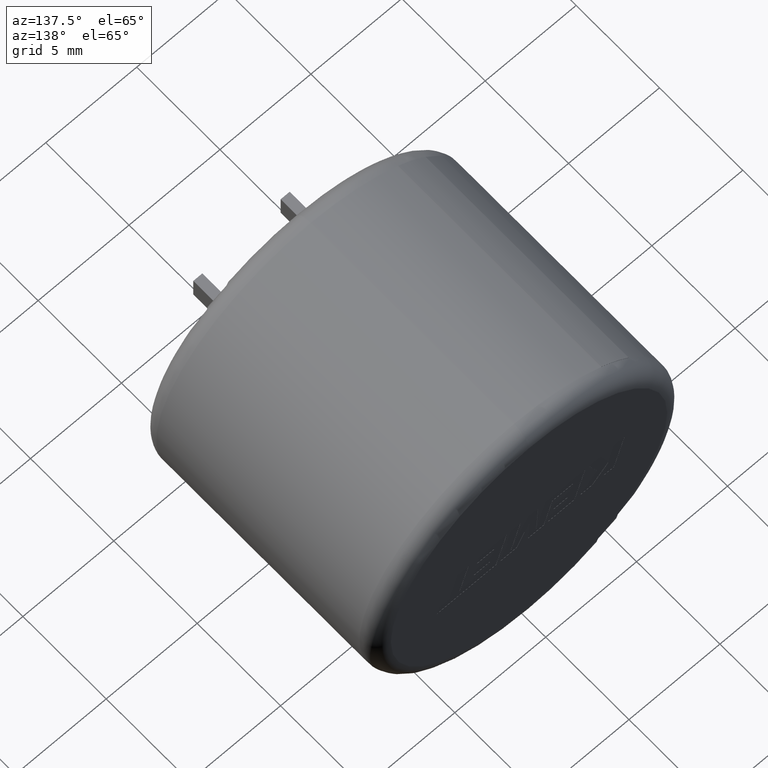
[diagram: clean part render]
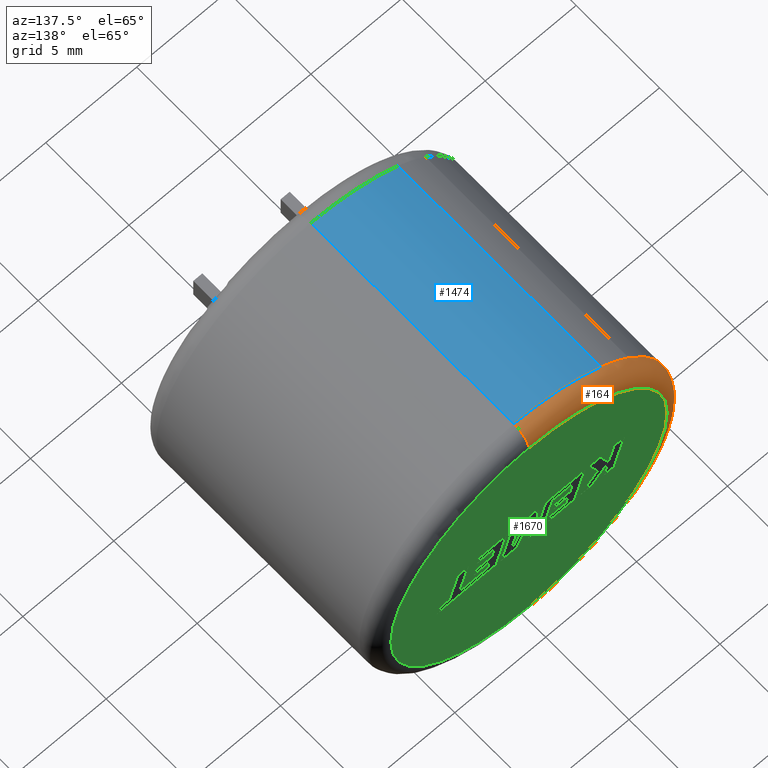
[diagram: same view with three faces highlighted in distinct colors, each labeled with its STEP entity id]
A machine part, auxiliary view with three faces highlighted in distinct colors.
Their STEP definitions:

[orange] entity #164 — the highlighted toroidal blend (fillet) surface has major radius 7.597 mm and minor (blend) radius 0.903 mm.
#4 = CARTESIAN_POINT ( 'NONE',  ( 0.0000000000000000000, 14.00000000000000000, 0.0000000000000000000 ) ) ;
#15 = CARTESIAN_POINT ( 'NONE',  ( 1.040949779275250100E-015, 13.09700000000000100, 8.500000000000000000 ) ) ;
#39 = DIRECTION ( 'NONE',  ( 0.0000000000000000000, 0.0000000000000000000, 1.000000000000000000 ) ) ;
#82 = EDGE_CURVE ( 'NONE', #1088, #2329, #1260, .T. ) ;
#98 = DIRECTION ( 'NONE',  ( -1.000000000000000000, 0.0000000000000000000, 0.0000000000000000000 ) ) ;
#164 = ADVANCED_FACE ( 'NONE', ( #1083 ), #819, .T. ) ;
#245 = VERTEX_POINT ( 'NONE', #284 ) ;
#256 = CARTESIAN_POINT ( 'NONE',  ( 0.0000000000000000000, 13.09700000000000100, 0.0000000000000000000 ) ) ;
#284 = CARTESIAN_POINT ( 'NONE',  ( 0.0000000000000000000, 13.09700000000000100, -8.500000000000000000 ) ) ;
#302 = VERTEX_POINT ( 'NONE', #702 ) ;
#450 = DIRECTION ( 'NONE',  ( -0.0000000000000000000, -1.000000000000000000, -0.0000000000000000000 ) ) ;
#455 = CARTESIAN_POINT ( 'NONE',  ( 0.0000000000000000000, 13.09700000000000100, 0.0000000000000000000 ) ) ;
#460 = AXIS2_PLACEMENT_3D ( 'NONE', #4, #1494, #1700 ) ;
#567 = CARTESIAN_POINT ( 'NONE',  ( 0.0000000000000000000, 13.09700000000000100, 7.597000000000000400 ) ) ;
#592 = AXIS2_PLACEMENT_3D ( 'NONE', #256, #1108, #2605 ) ;
#690 = EDGE_LOOP ( 'NONE', ( #1512, #1246, #697, #2365, #1658, #1499 ) ) ;
#697 = ORIENTED_EDGE ( 'NONE', *, *, #2578, .F. ) ;
#702 = CARTESIAN_POINT ( 'NONE',  ( -4.796984718136113400, 13.09700000000000100, 7.017046217174900800 ) ) ;
#747 = CIRCLE ( 'NONE', #592, 8.500000000000000000 ) ;
#801 = EDGE_CURVE ( 'NONE', #2371, #2329, #1804, .T. ) ;
#819 = TOROIDAL_SURFACE ( 'NONE', #912, 7.597000000000000400, 0.9030000000000000200 ) ;
#906 = CIRCLE ( 'NONE', #1922, 8.500000000000000000 ) ;
#912 = AXIS2_PLACEMENT_3D ( 'NONE', #455, #2194, #39 ) ;
#929 = EDGE_CURVE ( 'NONE', #245, #1088, #2611, .T. ) ;
#1028 = DIRECTION ( 'NONE',  ( 1.000000000000000000, -0.0000000000000000000, 1.224646799147353200E-016 ) ) ;
#1083 = FACE_OUTER_BOUND ( 'NONE', #690, .T. ) ;
#1088 = VERTEX_POINT ( 'NONE', #1543 ) ;
#1108 = DIRECTION ( 'NONE',  ( -0.0000000000000000000, -1.000000000000000000, -0.0000000000000000000 ) ) ;
#1156 = AXIS2_PLACEMENT_3D ( 'NONE', #567, #98, #1390 ) ;
#1219 = CARTESIAN_POINT ( 'NONE',  ( 9.303641733122443500E-016, 13.09700000000000100, -7.597000000000000400 ) ) ;
#1246 = ORIENTED_EDGE ( 'NONE', *, *, #1542, .F. ) ;
#1260 = CIRCLE ( 'NONE', #460, 7.597000000000000400 ) ;
#1390 = DIRECTION ( 'NONE',  ( 0.0000000000000000000, 0.0000000000000000000, 1.000000000000000000 ) ) ;
#1406 = VERTEX_POINT ( 'NONE', #2011 ) ;
#1494 = DIRECTION ( 'NONE',  ( 0.0000000000000000000, 1.000000000000000000, 0.0000000000000000000 ) ) ;
#1499 = ORIENTED_EDGE ( 'NONE', *, *, #82, .F. ) ;
#1512 = ORIENTED_EDGE ( 'NONE', *, *, #929, .F. ) ;
#1542 = EDGE_CURVE ( 'NONE', #1406, #245, #906, .T. ) ;
#1543 = CARTESIAN_POINT ( 'NONE',  ( 9.856569762937473500E-016, 14.00000000000000000, -7.597000000000000400 ) ) ;
#1658 = ORIENTED_EDGE ( 'NONE', *, *, #801, .T. ) ;
#1700 = DIRECTION ( 'NONE',  ( 0.0000000000000000000, 0.0000000000000000000, 1.000000000000000000 ) ) ;
#1804 = CIRCLE ( 'NONE', #1156, 0.9030000000000001400 ) ;
#1902 = CARTESIAN_POINT ( 'NONE',  ( 0.0000000000000000000, 13.09700000000000100, 0.0000000000000000000 ) ) ;
#1904 = CARTESIAN_POINT ( 'NONE',  ( 0.0000000000000000000, 14.00000000000000000, 7.597000000000000400 ) ) ;
#1922 = AXIS2_PLACEMENT_3D ( 'NONE', #1902, #2338, #2572 ) ;
#1959 = AXIS2_PLACEMENT_3D ( 'NONE', #2577, #450, #2587 ) ;
#1996 = AXIS2_PLACEMENT_3D ( 'NONE', #1219, #1028, #2520 ) ;
#2011 = CARTESIAN_POINT ( 'NONE',  ( -6.300684749941227700, 13.09700000000000100, 5.705380940994041700 ) ) ;
#2194 = DIRECTION ( 'NONE',  ( 0.0000000000000000000, 1.000000000000000000, 0.0000000000000000000 ) ) ;
#2329 = VERTEX_POINT ( 'NONE', #1904 ) ;
#2338 = DIRECTION ( 'NONE',  ( -0.0000000000000000000, -1.000000000000000000, -0.0000000000000000000 ) ) ;
#2346 = EDGE_CURVE ( 'NONE', #2371, #302, #2354, .T. ) ;
#2354 = CIRCLE ( 'NONE', #1959, 8.500000000000000000 ) ;
#2365 = ORIENTED_EDGE ( 'NONE', *, *, #2346, .F. ) ;
#2371 = VERTEX_POINT ( 'NONE', #15 ) ;
#2520 = DIRECTION ( 'NONE',  ( 1.224646799147352500E-016, 0.0000000000000000000, -1.000000000000000000 ) ) ;
#2572 = DIRECTION ( 'NONE',  ( 0.0000000000000000000, 0.0000000000000000000, 1.000000000000000000 ) ) ;
#2577 = CARTESIAN_POINT ( 'NONE',  ( 0.0000000000000000000, 13.09700000000000100, 0.0000000000000000000 ) ) ;
#2578 = EDGE_CURVE ( 'NONE', #302, #1406, #747, .T. ) ;
#2587 = DIRECTION ( 'NONE',  ( 0.0000000000000000000, 0.0000000000000000000, 1.000000000000000000 ) ) ;
#2605 = DIRECTION ( 'NONE',  ( 0.0000000000000000000, 0.0000000000000000000, 1.000000000000000000 ) ) ;
#2611 = CIRCLE ( 'NONE', #1996, 0.9030000000000001400 ) ;

[blue] entity #1474 — the highlighted cylindrical surface (partial cylindrical patch) has radius 8.5 mm, axis along (-0, -1, -0).
#15 = CARTESIAN_POINT ( 'NONE',  ( 1.040949779275250100E-015, 13.09700000000000100, 8.500000000000000000 ) ) ;
#26 = CARTESIAN_POINT ( 'NONE',  ( 1.040949779275250100E-015, 14.00000000000000000, 8.500000000000000000 ) ) ;
#34 = DIRECTION ( 'NONE',  ( -0.0000000000000000000, -1.000000000000000000, -0.0000000000000000000 ) ) ;
#289 = LINE ( 'NONE', #1080, #834 ) ;
#302 = VERTEX_POINT ( 'NONE', #702 ) ;
#405 = CIRCLE ( 'NONE', #2590, 8.500000000000000000 ) ;
#450 = DIRECTION ( 'NONE',  ( -0.0000000000000000000, -1.000000000000000000, -0.0000000000000000000 ) ) ;
#531 = DIRECTION ( 'NONE',  ( 0.0000000000000000000, 0.0000000000000000000, 1.000000000000000000 ) ) ;
#558 = DIRECTION ( 'NONE',  ( -0.0000000000000000000, -1.000000000000000000, -0.0000000000000000000 ) ) ;
#702 = CARTESIAN_POINT ( 'NONE',  ( -4.796984718136113400, 13.09700000000000100, 7.017046217174900800 ) ) ;
#794 = AXIS2_PLACEMENT_3D ( 'NONE', #2681, #558, #2487 ) ;
#834 = VECTOR ( 'NONE', #1720, 1000.000000000000000 ) ;
#1009 = FACE_OUTER_BOUND ( 'NONE', #2601, .T. ) ;
#1029 = VERTEX_POINT ( 'NONE', #2353 ) ;
#1071 = EDGE_CURVE ( 'NONE', #2371, #1029, #1079, .T. ) ;
#1079 = LINE ( 'NONE', #26, #2715 ) ;
#1080 = CARTESIAN_POINT ( 'NONE',  ( -4.796984718136113400, 0.9029999999999992500, 7.017046217174900800 ) ) ;
#1122 = ORIENTED_EDGE ( 'NONE', *, *, #1071, .F. ) ;
#1154 = EDGE_CURVE ( 'NONE', #1878, #1029, #405, .T. ) ;
#1474 = ADVANCED_FACE ( 'NONE', ( #1009 ), #2737, .T. ) ;
#1720 = DIRECTION ( 'NONE',  ( 0.0000000000000000000, 1.000000000000000000, 0.0000000000000000000 ) ) ;
#1769 = CARTESIAN_POINT ( 'NONE',  ( 0.0000000000000000000, 0.9029999999999992500, 0.0000000000000000000 ) ) ;
#1878 = VERTEX_POINT ( 'NONE', #2249 ) ;
#1959 = AXIS2_PLACEMENT_3D ( 'NONE', #2577, #450, #2587 ) ;
#2249 = CARTESIAN_POINT ( 'NONE',  ( -4.796984718136112500, 0.9029999999999992500, 7.017046217174901700 ) ) ;
#2346 = EDGE_CURVE ( 'NONE', #2371, #302, #2354, .T. ) ;
#2353 = CARTESIAN_POINT ( 'NONE',  ( 1.040949779275250100E-015, 0.9029999999999992500, 8.500000000000000000 ) ) ;
#2354 = CIRCLE ( 'NONE', #1959, 8.500000000000000000 ) ;
#2356 = ORIENTED_EDGE ( 'NONE', *, *, #1154, .T. ) ;
#2371 = VERTEX_POINT ( 'NONE', #15 ) ;
#2416 = EDGE_CURVE ( 'NONE', #1878, #302, #289, .T. ) ;
#2457 = ORIENTED_EDGE ( 'NONE', *, *, #2416, .F. ) ;
#2487 = DIRECTION ( 'NONE',  ( 0.0000000000000000000, 0.0000000000000000000, -1.000000000000000000 ) ) ;
#2577 = CARTESIAN_POINT ( 'NONE',  ( 0.0000000000000000000, 13.09700000000000100, 0.0000000000000000000 ) ) ;
#2587 = DIRECTION ( 'NONE',  ( 0.0000000000000000000, 0.0000000000000000000, 1.000000000000000000 ) ) ;
#2590 = AXIS2_PLACEMENT_3D ( 'NONE', #1769, #2664, #531 ) ;
#2601 = EDGE_LOOP ( 'NONE', ( #1122, #2689, #2457, #2356 ) ) ;
#2664 = DIRECTION ( 'NONE',  ( 0.0000000000000000000, 1.000000000000000000, 0.0000000000000000000 ) ) ;
#2681 = CARTESIAN_POINT ( 'NONE',  ( 0.0000000000000000000, 14.00000000000000000, 0.0000000000000000000 ) ) ;
#2689 = ORIENTED_EDGE ( 'NONE', *, *, #2346, .T. ) ;
#2715 = VECTOR ( 'NONE', #34, 1000.000000000000000 ) ;
#2737 = CYLINDRICAL_SURFACE ( 'NONE', #794, 8.500000000000000000 ) ;

[green] entity #1670 — the highlighted planar face has unit normal (0, 1, 0).
#2 = VECTOR ( 'NONE', #902, 1000.000000000000000 ) ;
#3 = DIRECTION ( 'NONE',  ( 0.2762437428917315400, 0.0000000000000000000, -0.9610876102172824000 ) ) ;
#4 = CARTESIAN_POINT ( 'NONE',  ( 0.0000000000000000000, 14.00000000000000000, 0.0000000000000000000 ) ) ;
#8 = LINE ( 'NONE', #131, #79 ) ;
#9 = EDGE_CURVE ( 'NONE', #2024, #1627, #754, .T. ) ;
#11 = VERTEX_POINT ( 'NONE', #557 ) ;
#20 = EDGE_CURVE ( 'NONE', #1627, #895, #8, .T. ) ;
#30 = VERTEX_POINT ( 'NONE', #2157 ) ;
#33 = LINE ( 'NONE', #1851, #2480 ) ;
#36 = CARTESIAN_POINT ( 'NONE',  ( -4.364136469712908800, 14.00000000000000000, -0.04168639734652045800 ) ) ;
#42 = VERTEX_POINT ( 'NONE', #1089 ) ;
#58 = VECTOR ( 'NONE', #356, 1000.000000000000100 ) ;
#62 = ORIENTED_EDGE ( 'NONE', *, *, #2400, .F. ) ;
#69 = VECTOR ( 'NONE', #837, 999.9999999999998900 ) ;
#75 = LINE ( 'NONE', #254, #2106 ) ;
#79 = VECTOR ( 'NONE', #1900, 1000.000000000000100 ) ;
#80 = ORIENTED_EDGE ( 'NONE', *, *, #2569, .F. ) ;
#82 = EDGE_CURVE ( 'NONE', #1088, #2329, #1260, .T. ) ;
#86 = CARTESIAN_POINT ( 'NONE',  ( -4.364136469712908800, 14.00000000000000000, -0.04168639734652045800 ) ) ;
#87 = CARTESIAN_POINT ( 'NONE',  ( 0.4721173966834419400, 14.00000000000000000, 1.053028994543904900 ) ) ;
#92 = VERTEX_POINT ( 'NONE', #2762 ) ;
#97 = DIRECTION ( 'NONE',  ( 0.9999999968487352000, 0.0000000000000000000, 7.938847109754407800E-005 ) ) ;
#101 = VERTEX_POINT ( 'NONE', #1298 ) ;
#106 = EDGE_CURVE ( 'NONE', #1747, #430, #684, .T. ) ;
#118 = VECTOR ( 'NONE', #2558, 1000.000000000000000 ) ;
#123 = CARTESIAN_POINT ( 'NONE',  ( -2.402511279821104600, 14.00000000000000000, 0.6694550024109757700 ) ) ;
#131 = CARTESIAN_POINT ( 'NONE',  ( -5.251205731465742800, 14.00000000000000000, 1.053028994543842500 ) ) ;
#133 = CARTESIAN_POINT ( 'NONE',  ( 2.268643844463263300, 14.00000000000000000, -0.5792907574821812800 ) ) ;
#134 = VERTEX_POINT ( 'NONE', #667 ) ;
#140 = VERTEX_POINT ( 'NONE', #2549 ) ;
#144 = CARTESIAN_POINT ( 'NONE',  ( -3.311272758248907000, 14.00000000000000000, 1.053028994543904900 ) ) ;
#147 = ORIENTED_EDGE ( 'NONE', *, *, #106, .F. ) ;
#149 = AXIS2_PLACEMENT_3D ( 'NONE', #1877, #2409, #514 ) ;
#150 = DIRECTION ( 'NONE',  ( -1.000000000000000000, 0.0000000000000000000, 5.050979426444720200E-016 ) ) ;
#155 = VECTOR ( 'NONE', #1106, 999.9999999999998900 ) ;
#156 = DIRECTION ( 'NONE',  ( -1.000000000000000000, 0.0000000000000000000, 0.0000000000000000000 ) ) ;
#168 = CARTESIAN_POINT ( 'NONE',  ( -1.016703871901081000, 14.00000000000000000, -0.9631222229663523000 ) ) ;
#171 = LINE ( 'NONE', #2339, #1792 ) ;
#176 = ORIENTED_EDGE ( 'NONE', *, *, #1507, .F. ) ;
#177 = CARTESIAN_POINT ( 'NONE',  ( 1.227090569557494300, 14.00000000000000000, 1.053028994543904900 ) ) ;
#191 = ORIENTED_EDGE ( 'NONE', *, *, #1368, .F. ) ;
#195 = EDGE_CURVE ( 'NONE', #2274, #491, #2744, .T. ) ;
#212 = VERTEX_POINT ( 'NONE', #1115 ) ;
#232 = VECTOR ( 'NONE', #696, 1000.000000000000200 ) ;
#244 = EDGE_CURVE ( 'NONE', #92, #1717, #75, .T. ) ;
#252 = ORIENTED_EDGE ( 'NONE', *, *, #2690, .F. ) ;
#254 = CARTESIAN_POINT ( 'NONE',  ( 3.805490025235814100, 14.00000000000000000, -0.5738409048522489200 ) ) ;
#259 = CARTESIAN_POINT ( 'NONE',  ( -2.259736175507299100, 14.00000000000000000, 0.1683628157939400200 ) ) ;
#262 = LINE ( 'NONE', #1354, #232 ) ;
#263 = LINE ( 'NONE', #464, #506 ) ;
#266 = DIRECTION ( 'NONE',  ( 1.000000000000000000, 0.0000000000000000000, -4.034331580539989700E-016 ) ) ;
#270 = CARTESIAN_POINT ( 'NONE',  ( -2.506168825485704900, 14.00000000000000000, -0.9631222229663520800 ) ) ;
#280 = CARTESIAN_POINT ( 'NONE',  ( 2.859214151411832100, 14.00000000000000000, 0.6693814386009964100 ) ) ;
#281 = CARTESIAN_POINT ( 'NONE',  ( -4.097731242331414100, 14.00000000000000000, -0.9631222229663523000 ) ) ;
#286 = DIRECTION ( 'NONE',  ( -0.2760118818968560500, 0.0000000000000000000, 0.9611542233438689100 ) ) ;
#292 = VECTOR ( 'NONE', #879, 1000.000000000000000 ) ;
#296 = EDGE_CURVE ( 'NONE', #1717, #134, #2483, .T. ) ;
#312 = CARTESIAN_POINT ( 'NONE',  ( 4.931683720037595400, 14.00000000000000000, -0.5737970821254480000 ) ) ;
#328 = ORIENTED_EDGE ( 'NONE', *, *, #2617, .F. ) ;
#329 = VECTOR ( 'NONE', #2495, 1000.000000000000100 ) ;
#330 = EDGE_CURVE ( 'NONE', #2564, #30, #407, .T. ) ;
#332 = CARTESIAN_POINT ( 'NONE',  ( 3.192556318522601800, 14.00000000000000000, -0.5766915026842742700 ) ) ;
#334 = VECTOR ( 'NONE', #2251, 1000.000000000000000 ) ;
#337 = EDGE_LOOP ( 'NONE', ( #1266, #2161, #1263, #1462, #1611, #1712, #612, #2334, #2225, #176, #2574, #1741, #2493, #1596, #1310, #2016, #2668 ) ) ;
#341 = LINE ( 'NONE', #87, #2548 ) ;
#356 = DIRECTION ( 'NONE',  ( -0.3829140317376766900, -0.0000000000000000000, -0.9237839814038764100 ) ) ;
#358 = CARTESIAN_POINT ( 'NONE',  ( -1.016703871901081000, 14.00000000000000000, -0.9631222229663523000 ) ) ;
#360 = ORIENTED_EDGE ( 'NONE', *, *, #330, .F. ) ;
#372 = CARTESIAN_POINT ( 'NONE',  ( -1.284868498917413500, 14.00000000000000000, 0.6694550024109757700 ) ) ;
#389 = CARTESIAN_POINT ( 'NONE',  ( 3.192556318522602200, 14.00000000000000000, -0.5766915026842742700 ) ) ;
#407 = LINE ( 'NONE', #2377, #847 ) ;
#425 = VECTOR ( 'NONE', #150, 1000.000000000000000 ) ;
#426 = VECTOR ( 'NONE', #976, 1000.000000000000000 ) ;
#430 = VERTEX_POINT ( 'NONE', #1615 ) ;
#439 = ORIENTED_EDGE ( 'NONE', *, *, #9, .F. ) ;
#443 = CARTESIAN_POINT ( 'NONE',  ( -0.03453285888950724500, 14.00000000000000000, 0.4772421111879622800 ) ) ;
#454 = CARTESIAN_POINT ( 'NONE',  ( 1.910155113253702200, 14.00000000000000000, 0.6693814386009966400 ) ) ;
#460 = AXIS2_PLACEMENT_3D ( 'NONE', #4, #1494, #1700 ) ;
#464 = CARTESIAN_POINT ( 'NONE',  ( 3.912071732558238600, 14.00000000000000000, 1.053028994543904000 ) ) ;
#466 = CARTESIAN_POINT ( 'NONE',  ( 3.024744995834479400, 14.00000000000000000, -0.2042869498019201400 ) ) ;
#467 = DIRECTION ( 'NONE',  ( 0.2763139702539117400, 0.0000000000000000000, -0.9610674221107072800 ) ) ;
#471 = VECTOR ( 'NONE', #2119, 1000.000000000000200 ) ;
#472 = VECTOR ( 'NONE', #97, 1000.000000000000100 ) ;
#476 = CARTESIAN_POINT ( 'NONE',  ( -0.3989456066037058200, 14.00000000000000000, -0.7418974402618798700 ) ) ;
#491 = VERTEX_POINT ( 'NONE', #332 ) ;
#493 = CARTESIAN_POINT ( 'NONE',  ( 2.750351965824065400, 14.00000000000000000, 1.053028994543904400 ) ) ;
#498 = ORIENTED_EDGE ( 'NONE', *, *, #996, .F. ) ;
#505 = VECTOR ( 'NONE', #286, 1000.000000000000200 ) ;
#506 = VECTOR ( 'NONE', #3, 1000.000000000000000 ) ;
#507 = CARTESIAN_POINT ( 'NONE',  ( -0.03453285888950724500, 14.00000000000000000, 0.4772421111879622800 ) ) ;
#512 = LINE ( 'NONE', #1964, #1653 ) ;
#514 = DIRECTION ( 'NONE',  ( 0.0000000000000000000, 0.0000000000000000000, 1.000000000000000000 ) ) ;
#525 = CARTESIAN_POINT ( 'NONE',  ( -1.288044003593056700, 14.00000000000000000, -0.2043543833022431500 ) ) ;
#535 = VERTEX_POINT ( 'NONE', #1215 ) ;
#539 = FACE_BOUND ( 'NONE', #1469, .T. ) ;
#546 = VECTOR ( 'NONE', #1663, 1000.000000000000100 ) ;
#555 = ORIENTED_EDGE ( 'NONE', *, *, #1393, .F. ) ;
#557 = CARTESIAN_POINT ( 'NONE',  ( 2.750351965824065400, 14.00000000000000000, 1.053028994543904400 ) ) ;
#564 = VERTEX_POINT ( 'NONE', #1023 ) ;
#578 = EDGE_CURVE ( 'NONE', #641, #1203, #33, .T. ) ;
#579 = DIRECTION ( 'NONE',  ( -1.000000000000000000, 0.0000000000000000000, 1.448785531673512200E-016 ) ) ;
#594 = DIRECTION ( 'NONE',  ( 1.000000000000000000, 0.0000000000000000000, 0.0000000000000000000 ) ) ;
#599 = ORIENTED_EDGE ( 'NONE', *, *, #1776, .F. ) ;
#612 = ORIENTED_EDGE ( 'NONE', *, *, #2320, .F. ) ;
#632 = EDGE_CURVE ( 'NONE', #2329, #1088, #2615, .T. ) ;
#635 = VECTOR ( 'NONE', #2364, 1000.000000000000100 ) ;
#641 = VERTEX_POINT ( 'NONE', #2318 ) ;
#652 = VECTOR ( 'NONE', #266, 1000.000000000000000 ) ;
#667 = CARTESIAN_POINT ( 'NONE',  ( 3.912071732558238600, 14.00000000000000000, 1.053028994543904000 ) ) ;
#670 = ORIENTED_EDGE ( 'NONE', *, *, #632, .T. ) ;
#680 = VECTOR ( 'NONE', #1799, 1000.000000000000000 ) ;
#683 = DIRECTION ( 'NONE',  ( -1.000000000000000000, 0.0000000000000000000, 2.506186073112944800E-016 ) ) ;
#684 = LINE ( 'NONE', #872, #118 ) ;
#696 = DIRECTION ( 'NONE',  ( 0.4668459304955212000, 0.0000000000000000000, -0.8843386665637610300 ) ) ;
#701 = CARTESIAN_POINT ( 'NONE',  ( 1.910155113253702200, 14.00000000000000000, 0.6693814386009966400 ) ) ;
#704 = VERTEX_POINT ( 'NONE', #270 ) ;
#709 = PLANE ( 'NONE',  #992 ) ;
#729 = CARTESIAN_POINT ( 'NONE',  ( 0.0000000000000000000, 14.00000000000000000, 0.0000000000000000000 ) ) ;
#730 = ORIENTED_EDGE ( 'NONE', *, *, #1662, .F. ) ;
#739 = VECTOR ( 'NONE', #1188, 1000.000000000000000 ) ;
#740 = CARTESIAN_POINT ( 'NONE',  ( -2.259736175507299100, 14.00000000000000000, 0.1683628157939400200 ) ) ;
#741 = CARTESIAN_POINT ( 'NONE',  ( 2.918285894870225900, 14.00000000000000000, 0.1683628157980139000 ) ) ;
#746 = ORIENTED_EDGE ( 'NONE', *, *, #1358, .F. ) ;
#754 = LINE ( 'NONE', #2109, #1293 ) ;
#762 = ORIENTED_EDGE ( 'NONE', *, *, #943, .F. ) ;
#770 = VECTOR ( 'NONE', #2632, 1000.000000000000000 ) ;
#780 = EDGE_CURVE ( 'NONE', #2731, #1093, #341, .T. ) ;
#781 = VECTOR ( 'NONE', #2231, 1000.000000000000100 ) ;
#791 = CARTESIAN_POINT ( 'NONE',  ( -2.506168825485704900, 14.00000000000000000, -0.9631222229663520800 ) ) ;
#800 = ORIENTED_EDGE ( 'NONE', *, *, #2333, .F. ) ;
#831 = EDGE_CURVE ( 'NONE', #1444, #1328, #1677, .T. ) ;
#837 = DIRECTION ( 'NONE',  ( 0.2732148821745903900, 0.0000000000000000000, -0.9619530280415592400 ) ) ;
#838 = VERTEX_POINT ( 'NONE', #1007 ) ;
#842 = LINE ( 'NONE', #1894, #950 ) ;
#847 = VECTOR ( 'NONE', #2660, 1000.000000000000100 ) ;
#852 = ORIENTED_EDGE ( 'NONE', *, *, #2300, .F. ) ;
#853 = EDGE_CURVE ( 'NONE', #140, #1439, #1733, .T. ) ;
#858 = CARTESIAN_POINT ( 'NONE',  ( -3.487335487235283500, 14.00000000000000000, -0.9631222229663523000 ) ) ;
#870 = LINE ( 'NONE', #2616, #505 ) ;
#872 = CARTESIAN_POINT ( 'NONE',  ( 1.564110927417840000, 14.00000000000000000, -0.9631222229663527500 ) ) ;
#879 = DIRECTION ( 'NONE',  ( -1.000000000000000000, -0.0000000000000000000, -0.0000000000000000000 ) ) ;
#895 = VERTEX_POINT ( 'NONE', #2527 ) ;
#902 = DIRECTION ( 'NONE',  ( 1.000000000000000000, 0.0000000000000000000, 0.0000000000000000000 ) ) ;
#916 = VECTOR ( 'NONE', #1737, 1000.000000000000000 ) ;
#920 = DIRECTION ( 'NONE',  ( 1.000000000000000000, 0.0000000000000000000, -2.847054813160298500E-016 ) ) ;
#923 = CARTESIAN_POINT ( 'NONE',  ( 5.043569033575890300, 14.00000000000000000, -0.9631222229663530800 ) ) ;
#943 = EDGE_CURVE ( 'NONE', #535, #2564, #842, .T. ) ;
#947 = EDGE_CURVE ( 'NONE', #491, #92, #1998, .T. ) ;
#950 = VECTOR ( 'NONE', #1901, 1000.000000000000200 ) ;
#951 = LINE ( 'NONE', #1979, #2612 ) ;
#955 = CARTESIAN_POINT ( 'NONE',  ( -0.8156049229187412000, 14.00000000000000000, -0.9631222229663523000 ) ) ;
#976 = DIRECTION ( 'NONE',  ( 1.000000000000000000, -0.0000000000000000000, -0.0000000000000000000 ) ) ;
#986 = VERTEX_POINT ( 'NONE', #1299 ) ;
#991 = VERTEX_POINT ( 'NONE', #2553 ) ;
#992 = AXIS2_PLACEMENT_3D ( 'NONE', #729, #2628, #2606 ) ;
#996 = EDGE_CURVE ( 'NONE', #838, #1471, #1730, .T. ) ;
#1000 = LINE ( 'NONE', #1438, #425 ) ;
#1007 = CARTESIAN_POINT ( 'NONE',  ( -1.125700924485933100, 14.00000000000000000, -0.5793581909814401500 ) ) ;
#1020 = CARTESIAN_POINT ( 'NONE',  ( -4.677904531710408900, 14.00000000000000000, 1.053028994543905300 ) ) ;
#1023 = CARTESIAN_POINT ( 'NONE',  ( -4.344182283275985800, 14.00000000000000000, -0.1033573956103139300 ) ) ;
#1025 = ORIENTED_EDGE ( 'NONE', *, *, #578, .F. ) ;
#1054 = DIRECTION ( 'NONE',  ( -1.000000000000000000, -0.0000000000000000000, -0.0000000000000000000 ) ) ;
#1065 = LINE ( 'NONE', #1448, #329 ) ;
#1066 = LINE ( 'NONE', #493, #770 ) ;
#1075 = VECTOR ( 'NONE', #594, 1000.000000000000000 ) ;
#1088 = VERTEX_POINT ( 'NONE', #1543 ) ;
#1089 = CARTESIAN_POINT ( 'NONE',  ( -2.044280021955986900, 14.00000000000000000, -0.5793581909814401500 ) ) ;
#1093 = VERTEX_POINT ( 'NONE', #1529 ) ;
#1099 = EDGE_CURVE ( 'NONE', #1237, #641, #1925, .T. ) ;
#1100 = VECTOR ( 'NONE', #1190, 1000.000000000000000 ) ;
#1101 = ORIENTED_EDGE ( 'NONE', *, *, #1427, .F. ) ;
#1106 = DIRECTION ( 'NONE',  ( 0.9999960426590096500, 0.0000000000000000000, 0.002813301676022722900 ) ) ;
#1115 = CARTESIAN_POINT ( 'NONE',  ( -2.402511279821104600, 14.00000000000000000, 0.6694550024109757700 ) ) ;
#1123 = CARTESIAN_POINT ( 'NONE',  ( -3.924721411668132800, 14.00000000000000000, 1.053028994543904900 ) ) ;
#1125 = DIRECTION ( 'NONE',  ( 0.2746918797667231600, 0.0000000000000000000, -0.9615323037684299100 ) ) ;
#1128 = LINE ( 'NONE', #858, #292 ) ;
#1166 = CARTESIAN_POINT ( 'NONE',  ( 4.379680122707077800, 14.00000000000000000, -0.5738409048472185000 ) ) ;
#1168 = DIRECTION ( 'NONE',  ( 0.2740217765954067200, 0.0000000000000000000, -0.9617234872620595800 ) ) ;
#1169 = CARTESIAN_POINT ( 'NONE',  ( 1.807006385584198200, 14.00000000000000000, -0.9631222229663527500 ) ) ;
#1178 = CARTESIAN_POINT ( 'NONE',  ( -1.288044003593056700, 14.00000000000000000, -0.2043543833022431500 ) ) ;
#1182 = CARTESIAN_POINT ( 'NONE',  ( -2.153399680898977000, 14.00000000000000000, -0.2043543833022431500 ) ) ;
#1187 = CARTESIAN_POINT ( 'NONE',  ( 3.303711244630005400, 14.00000000000000000, -0.9631222229663528600 ) ) ;
#1188 = DIRECTION ( 'NONE',  ( -1.000000000000000000, 0.0000000000000000000, 2.284793946200968400E-016 ) ) ;
#1190 = DIRECTION ( 'NONE',  ( -1.000000000000000000, 0.0000000000000000000, 0.0000000000000000000 ) ) ;
#1192 = VERTEX_POINT ( 'NONE', #86 ) ;
#1193 = CARTESIAN_POINT ( 'NONE',  ( 3.024744995834479400, 14.00000000000000000, -0.2042869498019201400 ) ) ;
#1203 = VERTEX_POINT ( 'NONE', #525 ) ;
#1204 = CARTESIAN_POINT ( 'NONE',  ( -2.153399680898977000, 14.00000000000000000, -0.2043543833022431500 ) ) ;
#1214 = DIRECTION ( 'NONE',  ( -1.000000000000000000, 0.0000000000000000000, 1.455827704943586500E-016 ) ) ;
#1215 = CARTESIAN_POINT ( 'NONE',  ( -0.9143214339711456300, 14.00000000000000000, 1.053028994543905300 ) ) ;
#1231 = EDGE_CURVE ( 'NONE', #1326, #1444, #1550, .T. ) ;
#1237 = VERTEX_POINT ( 'NONE', #740 ) ;
#1260 = CIRCLE ( 'NONE', #460, 7.597000000000000400 ) ;
#1262 = EDGE_CURVE ( 'NONE', #42, #838, #951, .T. ) ;
#1263 = ORIENTED_EDGE ( 'NONE', *, *, #2319, .F. ) ;
#1264 = VERTEX_POINT ( 'NONE', #955 ) ;
#1266 = ORIENTED_EDGE ( 'NONE', *, *, #195, .F. ) ;
#1276 = ORIENTED_EDGE ( 'NONE', *, *, #1680, .F. ) ;
#1278 = LINE ( 'NONE', #1187, #1412 ) ;
#1289 = EDGE_CURVE ( 'NONE', #1547, #1192, #1873, .T. ) ;
#1293 = VECTOR ( 'NONE', #1054, 1000.000000000000000 ) ;
#1298 = CARTESIAN_POINT ( 'NONE',  ( 0.04300255174971300700, 14.00000000000000000, -0.9631222229663527500 ) ) ;
#1299 = CARTESIAN_POINT ( 'NONE',  ( 2.159524185522648100, 14.00000000000000000, -0.2042869498019199100 ) ) ;
#1310 = ORIENTED_EDGE ( 'NONE', *, *, #296, .F. ) ;
#1313 = VECTOR ( 'NONE', #1597, 999.9999999999998900 ) ;
#1317 = LINE ( 'NONE', #2363, #1871 ) ;
#1325 = DIRECTION ( 'NONE',  ( -0.2763173343569915700, 0.0000000000000000000, 0.9610664548998921800 ) ) ;
#1326 = VERTEX_POINT ( 'NONE', #1968 ) ;
#1328 = VERTEX_POINT ( 'NONE', #923 ) ;
#1341 = ORIENTED_EDGE ( 'NONE', *, *, #82, .T. ) ;
#1344 = CARTESIAN_POINT ( 'NONE',  ( 2.918285894870225900, 14.00000000000000000, 0.1683628157980139000 ) ) ;
#1354 = CARTESIAN_POINT ( 'NONE',  ( 0.03793149982259607500, 14.00000000000000000, 1.053028994543905100 ) ) ;
#1358 = EDGE_CURVE ( 'NONE', #895, #1547, #2406, .T. ) ;
#1368 = EDGE_CURVE ( 'NONE', #212, #1237, #2546, .T. ) ;
#1370 = DIRECTION ( 'NONE',  ( 0.2793947940814914300, 0.0000000000000000000, -0.9601763114346035800 ) ) ;
#1376 = ORIENTED_EDGE ( 'NONE', *, *, #1903, .F. ) ;
#1385 = ORIENTED_EDGE ( 'NONE', *, *, #1099, .F. ) ;
#1393 = EDGE_CURVE ( 'NONE', #564, #2024, #2242, .T. ) ;
#1411 = FACE_BOUND ( 'NONE', #2488, .T. ) ;
#1412 = VECTOR ( 'NONE', #579, 1000.000000000000000 ) ;
#1424 = CARTESIAN_POINT ( 'NONE',  ( -3.086335984546776600, 14.00000000000000000, 1.053028994543905700 ) ) ;
#1427 = EDGE_CURVE ( 'NONE', #1192, #2191, #1456, .T. ) ;
#1435 = ORIENTED_EDGE ( 'NONE', *, *, #1973, .F. ) ;
#1438 = CARTESIAN_POINT ( 'NONE',  ( 0.04300255174971300700, 14.00000000000000000, -0.9631222229663527500 ) ) ;
#1439 = VERTEX_POINT ( 'NONE', #741 ) ;
#1444 = VERTEX_POINT ( 'NONE', #312 ) ;
#1448 = CARTESIAN_POINT ( 'NONE',  ( -4.344182283275985800, 14.00000000000000000, -0.1033573956103139300 ) ) ;
#1454 = LINE ( 'NONE', #1858, #1075 ) ;
#1456 = LINE ( 'NONE', #2218, #1929 ) ;
#1458 = EDGE_CURVE ( 'NONE', #1203, #2250, #1480, .T. ) ;
#1462 = ORIENTED_EDGE ( 'NONE', *, *, #2595, .F. ) ;
#1469 = EDGE_LOOP ( 'NONE', ( #147, #1276, #2415, #599, #730, #80, #360, #762, #252, #2708, #2700, #498, #1563, #1501, #2705, #1025, #1385, #191, #1621, #62, #1435, #2136, #328 ) ) ;
#1471 = VERTEX_POINT ( 'NONE', #358 ) ;
#1480 = LINE ( 'NONE', #1178, #1100 ) ;
#1492 = EDGE_CURVE ( 'NONE', #991, #212, #2098, .T. ) ;
#1494 = DIRECTION ( 'NONE',  ( 0.0000000000000000000, 1.000000000000000000, 0.0000000000000000000 ) ) ;
#1501 = ORIENTED_EDGE ( 'NONE', *, *, #2311, .F. ) ;
#1507 = EDGE_CURVE ( 'NONE', #2257, #1937, #1674, .T. ) ;
#1528 = DIRECTION ( 'NONE',  ( -0.2762517575166151300, 0.0000000000000000000, 0.9610853065513910200 ) ) ;
#1529 = CARTESIAN_POINT ( 'NONE',  ( 0.9844525863630282400, 14.00000000000000000, 1.053028994543904600 ) ) ;
#1543 = CARTESIAN_POINT ( 'NONE',  ( 9.856569762937473500E-016, 14.00000000000000000, -7.597000000000000400 ) ) ;
#1544 = DIRECTION ( 'NONE',  ( 0.2755265765475025100, -0.0000000000000000000, -0.9612934544747577800 ) ) ;
#1547 = VERTEX_POINT ( 'NONE', #2095 ) ;
#1548 = DIRECTION ( 'NONE',  ( -0.4443210308329209000, 0.0000000000000000000, 0.8958676361826954900 ) ) ;
#1550 = LINE ( 'NONE', #1166, #472 ) ;
#1563 = ORIENTED_EDGE ( 'NONE', *, *, #1262, .F. ) ;
#1596 = ORIENTED_EDGE ( 'NONE', *, *, #2048, .F. ) ;
#1597 = DIRECTION ( 'NONE',  ( 0.2745159998572669300, 0.0000000000000000000, -0.9615825319869143500 ) ) ;
#1611 = ORIENTED_EDGE ( 'NONE', *, *, #853, .F. ) ;
#1615 = CARTESIAN_POINT ( 'NONE',  ( 0.6798407158200339100, 14.00000000000000000, -0.9631222229663525300 ) ) ;
#1621 = ORIENTED_EDGE ( 'NONE', *, *, #1492, .F. ) ;
#1625 = CARTESIAN_POINT ( 'NONE',  ( 2.859214151411832100, 14.00000000000000000, 0.6693814386009964100 ) ) ;
#1626 = DIRECTION ( 'NONE',  ( 0.2746459304916897800, 0.0000000000000000000, -0.9615454294334480100 ) ) ;
#1627 = VERTEX_POINT ( 'NONE', #2150 ) ;
#1653 = VECTOR ( 'NONE', #1548, 1000.000000000000100 ) ;
#1662 = EDGE_CURVE ( 'NONE', #2398, #1845, #262, .T. ) ;
#1663 = DIRECTION ( 'NONE',  ( 0.2762033010288755300, 0.0000000000000000000, -0.9610992334305299400 ) ) ;
#1670 = ADVANCED_FACE ( 'NONE', ( #1763, #539, #1411, #1866 ), #709, .T. ) ;
#1674 = LINE ( 'NONE', #2702, #334 ) ;
#1677 = LINE ( 'NONE', #1865, #546 ) ;
#1679 = VECTOR ( 'NONE', #1544, 1000.000000000000100 ) ;
#1680 = EDGE_CURVE ( 'NONE', #1093, #1747, #2302, .T. ) ;
#1691 = ORIENTED_EDGE ( 'NONE', *, *, #1898, .F. ) ;
#1694 = VECTOR ( 'NONE', #2666, 999.9999999999998900 ) ;
#1698 = VECTOR ( 'NONE', #1370, 1000.000000000000100 ) ;
#1700 = DIRECTION ( 'NONE',  ( 0.0000000000000000000, 0.0000000000000000000, 1.000000000000000000 ) ) ;
#1704 = VECTOR ( 'NONE', #2285, 1000.000000000000000 ) ;
#1712 = ORIENTED_EDGE ( 'NONE', *, *, #2111, .F. ) ;
#1717 = VERTEX_POINT ( 'NONE', #2414 ) ;
#1718 = DIRECTION ( 'NONE',  ( 0.7145695586382339000, -0.0000000000000000000, -0.6995643972269883800 ) ) ;
#1730 = LINE ( 'NONE', #2742, #69 ) ;
#1733 = LINE ( 'NONE', #2083, #2739 ) ;
#1736 = CARTESIAN_POINT ( 'NONE',  ( -4.097731242331414100, 14.00000000000000000, -0.9631222229663523000 ) ) ;
#1737 = DIRECTION ( 'NONE',  ( 1.000000000000000000, 0.0000000000000000000, -3.775570415932256000E-016 ) ) ;
#1741 = ORIENTED_EDGE ( 'NONE', *, *, #831, .F. ) ;
#1747 = VERTEX_POINT ( 'NONE', #2389 ) ;
#1763 = FACE_BOUND ( 'NONE', #337, .T. ) ;
#1776 = EDGE_CURVE ( 'NONE', #1845, #2731, #870, .T. ) ;
#1780 = DIRECTION ( 'NONE',  ( 0.3725077383644269700, -0.0000000000000000000, 0.9280290862136917300 ) ) ;
#1785 = EDGE_LOOP ( 'NONE', ( #670, #1341 ) ) ;
#1792 = VECTOR ( 'NONE', #1528, 1000.000000000000100 ) ;
#1799 = DIRECTION ( 'NONE',  ( 1.000000000000000000, -0.0000000000000000000, 1.096870650732911000E-013 ) ) ;
#1803 = LINE ( 'NONE', #168, #2138 ) ;
#1845 = VERTEX_POINT ( 'NONE', #2679 ) ;
#1851 = CARTESIAN_POINT ( 'NONE',  ( -1.394503104559656100, 14.00000000000000000, 0.1683628157939400200 ) ) ;
#1855 = VERTEX_POINT ( 'NONE', #2008 ) ;
#1858 = CARTESIAN_POINT ( 'NONE',  ( -1.273190244891335900, 14.00000000000000000, 1.053028994543905300 ) ) ;
#1861 = LINE ( 'NONE', #1625, #739 ) ;
#1865 = CARTESIAN_POINT ( 'NONE',  ( 4.931683720037595400, 14.00000000000000000, -0.5737970821254480000 ) ) ;
#1866 = FACE_OUTER_BOUND ( 'NONE', #1785, .T. ) ;
#1871 = VECTOR ( 'NONE', #920, 1000.000000000000000 ) ;
#1873 = LINE ( 'NONE', #36, #1679 ) ;
#1877 = CARTESIAN_POINT ( 'NONE',  ( 0.0000000000000000000, 14.00000000000000000, 0.0000000000000000000 ) ) ;
#1885 = VERTEX_POINT ( 'NONE', #2276 ) ;
#1888 = VERTEX_POINT ( 'NONE', #2015 ) ;
#1894 = CARTESIAN_POINT ( 'NONE',  ( -0.9143214339711456300, 14.00000000000000000, 1.053028994543905300 ) ) ;
#1898 = EDGE_CURVE ( 'NONE', #1885, #564, #1065, .T. ) ;
#1900 = DIRECTION ( 'NONE',  ( -0.2762033010252001900, -0.0000000000000000000, 0.9610992334315862100 ) ) ;
#1901 = DIRECTION ( 'NONE',  ( 0.2759782365590740500, 0.0000000000000000000, -0.9611638845408954100 ) ) ;
#1903 = EDGE_CURVE ( 'NONE', #1888, #2627, #2475, .T. ) ;
#1904 = CARTESIAN_POINT ( 'NONE',  ( 0.0000000000000000000, 14.00000000000000000, 7.597000000000000400 ) ) ;
#1910 = EDGE_CURVE ( 'NONE', #1328, #2257, #1278, .T. ) ;
#1925 = LINE ( 'NONE', #259, #2 ) ;
#1929 = VECTOR ( 'NONE', #1780, 1000.000000000000000 ) ;
#1937 = VERTEX_POINT ( 'NONE', #177 ) ;
#1951 = CARTESIAN_POINT ( 'NONE',  ( 2.268643844463263300, 14.00000000000000000, -0.5792907574821812800 ) ) ;
#1961 = CARTESIAN_POINT ( 'NONE',  ( 2.159524185522648100, 14.00000000000000000, -0.2042869498019199100 ) ) ;
#1964 = CARTESIAN_POINT ( 'NONE',  ( 0.6798407158200340300, 14.00000000000000000, -0.9631222229663527500 ) ) ;
#1968 = CARTESIAN_POINT ( 'NONE',  ( 4.379680122707077800, 14.00000000000000000, -0.5738409048472185000 ) ) ;
#1973 = EDGE_CURVE ( 'NONE', #101, #1264, #1000, .T. ) ;
#1979 = CARTESIAN_POINT ( 'NONE',  ( -2.044280021955986900, 14.00000000000000000, -0.5793581909814401500 ) ) ;
#1986 = LINE ( 'NONE', #1204, #1694 ) ;
#1998 = LINE ( 'NONE', #389, #471 ) ;
#2008 = CARTESIAN_POINT ( 'NONE',  ( -2.823838918333584600, 14.00000000000000000, -0.9631222229663523000 ) ) ;
#2015 = CARTESIAN_POINT ( 'NONE',  ( -3.311272758248907000, 14.00000000000000000, 1.053028994543904900 ) ) ;
#2016 = ORIENTED_EDGE ( 'NONE', *, *, #244, .F. ) ;
#2024 = VERTEX_POINT ( 'NONE', #1736 ) ;
#2042 = VERTEX_POINT ( 'NONE', #454 ) ;
#2048 = EDGE_CURVE ( 'NONE', #134, #1326, #263, .T. ) ;
#2069 = LINE ( 'NONE', #1344, #2211 ) ;
#2083 = CARTESIAN_POINT ( 'NONE',  ( 2.053187690916773900, 14.00000000000000000, 0.1683628157980141300 ) ) ;
#2088 = ORIENTED_EDGE ( 'NONE', *, *, #1289, .F. ) ;
#2093 = EDGE_CURVE ( 'NONE', #986, #2274, #2301, .T. ) ;
#2095 = CARTESIAN_POINT ( 'NONE',  ( -4.677904531710408900, 14.00000000000000000, 1.053028994543905300 ) ) ;
#2098 = LINE ( 'NONE', #372, #2607 ) ;
#2106 = VECTOR ( 'NONE', #1325, 1000.000000000000200 ) ;
#2109 = CARTESIAN_POINT ( 'NONE',  ( -4.671798733445354100, 14.00000000000000000, -0.9631222229663523000 ) ) ;
#2111 = EDGE_CURVE ( 'NONE', #2042, #140, #2130, .T. ) ;
#2119 = DIRECTION ( 'NONE',  ( 0.9999891854650020400, 0.0000000000000000000, 0.004650693823678137000 ) ) ;
#2122 = CARTESIAN_POINT ( 'NONE',  ( 0.03793149982259607500, 14.00000000000000000, 1.053028994543905100 ) ) ;
#2130 = LINE ( 'NONE', #701, #1313 ) ;
#2136 = ORIENTED_EDGE ( 'NONE', *, *, #2382, .F. ) ;
#2138 = VECTOR ( 'NONE', #1214, 1000.000000000000000 ) ;
#2150 = CARTESIAN_POINT ( 'NONE',  ( -4.671798733445354100, 14.00000000000000000, -0.9631222229663523000 ) ) ;
#2157 = CARTESIAN_POINT ( 'NONE',  ( -0.4995563842746180700, 14.00000000000000000, 1.053028994543905300 ) ) ;
#2161 = ORIENTED_EDGE ( 'NONE', *, *, #2093, .F. ) ;
#2186 = CARTESIAN_POINT ( 'NONE',  ( -3.765038890539953000, 14.00000000000000000, -0.04168639734653927600 ) ) ;
#2191 = VERTEX_POINT ( 'NONE', #1123 ) ;
#2206 = EDGE_CURVE ( 'NONE', #11, #2464, #1066, .T. ) ;
#2210 = CARTESIAN_POINT ( 'NONE',  ( 3.337746768091752500, 14.00000000000000000, 1.053028994543904200 ) ) ;
#2211 = VECTOR ( 'NONE', #1125, 1000.000000000000000 ) ;
#2215 = CARTESIAN_POINT ( 'NONE',  ( 0.9844525863630282400, 14.00000000000000000, 1.053028994543904600 ) ) ;
#2218 = CARTESIAN_POINT ( 'NONE',  ( -3.924721411668132800, 14.00000000000000000, 1.053028994543904900 ) ) ;
#2225 = ORIENTED_EDGE ( 'NONE', *, *, #2557, .F. ) ;
#2231 = DIRECTION ( 'NONE',  ( 0.2755520632520542200, -0.0000000000000000000, -0.9612861490927329100 ) ) ;
#2232 = VERTEX_POINT ( 'NONE', #507 ) ;
#2237 = VECTOR ( 'NONE', #467, 1000.000000000000000 ) ;
#2240 = LINE ( 'NONE', #2388, #652 ) ;
#2242 = LINE ( 'NONE', #281, #781 ) ;
#2250 = VERTEX_POINT ( 'NONE', #1182 ) ;
#2251 = DIRECTION ( 'NONE',  ( -0.2764273280489769100, 0.0000000000000000000, 0.9610348236706635100 ) ) ;
#2257 = VERTEX_POINT ( 'NONE', #1169 ) ;
#2267 = VECTOR ( 'NONE', #683, 1000.000000000000000 ) ;
#2274 = VERTEX_POINT ( 'NONE', #133 ) ;
#2276 = CARTESIAN_POINT ( 'NONE',  ( -3.487335487235283500, 14.00000000000000000, -0.9631222229663523000 ) ) ;
#2277 = LINE ( 'NONE', #791, #1704 ) ;
#2280 = DIRECTION ( 'NONE',  ( 1.000000000000000000, 0.0000000000000000000, -2.506541263247940100E-016 ) ) ;
#2285 = DIRECTION ( 'NONE',  ( -0.2765379750249959400, 0.0000000000000000000, 0.9610029908221278100 ) ) ;
#2294 = CARTESIAN_POINT ( 'NONE',  ( -3.765038890539953000, 14.00000000000000000, -0.04168639734653927600 ) ) ;
#2300 = EDGE_CURVE ( 'NONE', #2191, #1888, #2434, .T. ) ;
#2301 = LINE ( 'NONE', #1961, #1698 ) ;
#2302 = LINE ( 'NONE', #2215, #2237 ) ;
#2310 = ORIENTED_EDGE ( 'NONE', *, *, #2492, .F. ) ;
#2311 = EDGE_CURVE ( 'NONE', #2250, #42, #1986, .T. ) ;
#2318 = CARTESIAN_POINT ( 'NONE',  ( -1.394503104559656100, 14.00000000000000000, 0.1683628157939400200 ) ) ;
#2319 = EDGE_CURVE ( 'NONE', #2526, #986, #2636, .T. ) ;
#2320 = EDGE_CURVE ( 'NONE', #2464, #2042, #1861, .T. ) ;
#2329 = VERTEX_POINT ( 'NONE', #1904 ) ;
#2333 = EDGE_CURVE ( 'NONE', #1855, #1885, #1128, .T. ) ;
#2334 = ORIENTED_EDGE ( 'NONE', *, *, #2206, .F. ) ;
#2339 = CARTESIAN_POINT ( 'NONE',  ( -0.8156049229187412000, 14.00000000000000000, -0.9631222229663523000 ) ) ;
#2363 = CARTESIAN_POINT ( 'NONE',  ( 1.227090569557494300, 14.00000000000000000, 1.053028994543904900 ) ) ;
#2364 = DIRECTION ( 'NONE',  ( 0.05375259206908298400, 0.0000000000000000000, -0.9985542843760947300 ) ) ;
#2377 = CARTESIAN_POINT ( 'NONE',  ( -0.3989456066037058200, 14.00000000000000000, -0.7418974402618798700 ) ) ;
#2382 = EDGE_CURVE ( 'NONE', #2232, #101, #2730, .T. ) ;
#2388 = CARTESIAN_POINT ( 'NONE',  ( -0.4995563842746180700, 14.00000000000000000, 1.053028994543905300 ) ) ;
#2389 = CARTESIAN_POINT ( 'NONE',  ( 1.564110927417840000, 14.00000000000000000, -0.9631222229663527500 ) ) ;
#2398 = VERTEX_POINT ( 'NONE', #2122 ) ;
#2400 = EDGE_CURVE ( 'NONE', #1264, #991, #171, .T. ) ;
#2406 = LINE ( 'NONE', #1020, #680 ) ;
#2409 = DIRECTION ( 'NONE',  ( 0.0000000000000000000, 1.000000000000000000, 0.0000000000000000000 ) ) ;
#2411 = DIRECTION ( 'NONE',  ( 1.000000000000000000, 0.0000000000000000000, 0.0000000000000000000 ) ) ;
#2414 = CARTESIAN_POINT ( 'NONE',  ( 3.337746768091752500, 14.00000000000000000, 1.053028994543904200 ) ) ;
#2415 = ORIENTED_EDGE ( 'NONE', *, *, #780, .F. ) ;
#2418 = DIRECTION ( 'NONE',  ( 1.000000000000000000, 0.0000000000000000000, -4.232393926185561900E-016 ) ) ;
#2434 = LINE ( 'NONE', #144, #426 ) ;
#2464 = VERTEX_POINT ( 'NONE', #280 ) ;
#2468 = ORIENTED_EDGE ( 'NONE', *, *, #20, .F. ) ;
#2475 = LINE ( 'NONE', #2294, #58 ) ;
#2479 = VECTOR ( 'NONE', #1168, 1000.000000000000200 ) ;
#2480 = VECTOR ( 'NONE', #1626, 1000.000000000000100 ) ;
#2483 = LINE ( 'NONE', #2210, #916 ) ;
#2488 = EDGE_LOOP ( 'NONE', ( #2468, #439, #555, #1691, #800, #2310, #1376, #852, #1101, #2088, #746 ) ) ;
#2490 = CARTESIAN_POINT ( 'NONE',  ( 0.4721173966834419400, 14.00000000000000000, 1.053028994543904900 ) ) ;
#2492 = EDGE_CURVE ( 'NONE', #2627, #1855, #2757, .T. ) ;
#2493 = ORIENTED_EDGE ( 'NONE', *, *, #1231, .F. ) ;
#2495 = DIRECTION ( 'NONE',  ( -0.7059037656364859400, -0.0000000000000000000, 0.7083077534943613700 ) ) ;
#2526 = VERTEX_POINT ( 'NONE', #466 ) ;
#2527 = CARTESIAN_POINT ( 'NONE',  ( -5.251205731465742800, 14.00000000000000000, 1.053028994543842500 ) ) ;
#2546 = LINE ( 'NONE', #123, #2479 ) ;
#2548 = VECTOR ( 'NONE', #2418, 1000.000000000000000 ) ;
#2549 = CARTESIAN_POINT ( 'NONE',  ( 2.053187690916773900, 14.00000000000000000, 0.1683628157980141300 ) ) ;
#2553 = CARTESIAN_POINT ( 'NONE',  ( -1.284868498917413500, 14.00000000000000000, 0.6694550024109757700 ) ) ;
#2557 = EDGE_CURVE ( 'NONE', #1937, #11, #1317, .T. ) ;
#2558 = DIRECTION ( 'NONE',  ( -1.000000000000000000, 0.0000000000000000000, 0.0000000000000000000 ) ) ;
#2564 = VERTEX_POINT ( 'NONE', #476 ) ;
#2569 = EDGE_CURVE ( 'NONE', #30, #2398, #2240, .T. ) ;
#2574 = ORIENTED_EDGE ( 'NONE', *, *, #1910, .F. ) ;
#2584 = CARTESIAN_POINT ( 'NONE',  ( -2.823838918333584600, 14.00000000000000000, -0.9631222229663523000 ) ) ;
#2595 = EDGE_CURVE ( 'NONE', #1439, #2526, #2069, .T. ) ;
#2606 = DIRECTION ( 'NONE',  ( 0.0000000000000000000, -0.0000000000000000000, 1.000000000000000000 ) ) ;
#2607 = VECTOR ( 'NONE', #156, 1000.000000000000000 ) ;
#2612 = VECTOR ( 'NONE', #2411, 1000.000000000000000 ) ;
#2615 = CIRCLE ( 'NONE', #149, 7.597000000000000400 ) ;
#2616 = CARTESIAN_POINT ( 'NONE',  ( 0.9900434363040663300, 14.00000000000000000, -0.7505411885221796600 ) ) ;
#2617 = EDGE_CURVE ( 'NONE', #430, #2232, #512, .T. ) ;
#2627 = VERTEX_POINT ( 'NONE', #2186 ) ;
#2628 = DIRECTION ( 'NONE',  ( 0.0000000000000000000, 1.000000000000000000, 0.0000000000000000000 ) ) ;
#2632 = DIRECTION ( 'NONE',  ( 0.2729786930695173900, 0.0000000000000000000, -0.9620200793798735500 ) ) ;
#2636 = LINE ( 'NONE', #1193, #2267 ) ;
#2644 = EDGE_CURVE ( 'NONE', #704, #2688, #2277, .T. ) ;
#2660 = DIRECTION ( 'NONE',  ( -0.05596501978067570900, 0.0000000000000000000, 0.9984327301130249100 ) ) ;
#2666 = DIRECTION ( 'NONE',  ( 0.2793947940878295200, 0.0000000000000000000, -0.9601763114327595000 ) ) ;
#2667 = VECTOR ( 'NONE', #1718, 1000.000000000000000 ) ;
#2668 = ORIENTED_EDGE ( 'NONE', *, *, #947, .F. ) ;
#2678 = EDGE_CURVE ( 'NONE', #1471, #704, #1803, .T. ) ;
#2679 = CARTESIAN_POINT ( 'NONE',  ( 0.9900434363040663300, 14.00000000000000000, -0.7505411885221796600 ) ) ;
#2688 = VERTEX_POINT ( 'NONE', #1424 ) ;
#2690 = EDGE_CURVE ( 'NONE', #2688, #535, #1454, .T. ) ;
#2700 = ORIENTED_EDGE ( 'NONE', *, *, #2678, .F. ) ;
#2702 = CARTESIAN_POINT ( 'NONE',  ( 1.807006385584198200, 14.00000000000000000, -0.9631222229663527500 ) ) ;
#2705 = ORIENTED_EDGE ( 'NONE', *, *, #1458, .F. ) ;
#2708 = ORIENTED_EDGE ( 'NONE', *, *, #2644, .F. ) ;
#2730 = LINE ( 'NONE', #443, #635 ) ;
#2731 = VERTEX_POINT ( 'NONE', #2490 ) ;
#2739 = VECTOR ( 'NONE', #2280, 1000.000000000000000 ) ;
#2742 = CARTESIAN_POINT ( 'NONE',  ( -1.125700924485933100, 14.00000000000000000, -0.5793581909814401500 ) ) ;
#2744 = LINE ( 'NONE', #1951, #155 ) ;
#2757 = LINE ( 'NONE', #2584, #2667 ) ;
#2762 = CARTESIAN_POINT ( 'NONE',  ( 3.805490025235814100, 14.00000000000000000, -0.5738409048522489200 ) ) ;